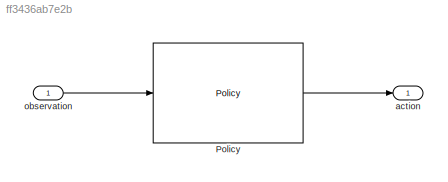
MODEL slx_ff3436ab7e2b
KIND model
CONFIG AbsTol = auto
CONFIG EnableMultiTasking = off
CONFIG FixedStep = auto
CONFIG MaxStep = auto
CONFIG MinStep = auto
CONFIG RelTol = 1e-3
CONFIG SampleTimeConstraint = Unconstrained
CONFIG SolverName = FixedStepAuto
CONFIG StartTime = 0.0
CONFIG StopTime = 10.0
BLOCK [Reference] Policy  REF=rllib/Policy
  SourceBlock = rllib/Policy
  SourceType = Policy
BLOCK [Outport] action
BLOCK [Inport] observation
LINE Policy:1 -> action:1
LINE observation:1 -> Policy:1
